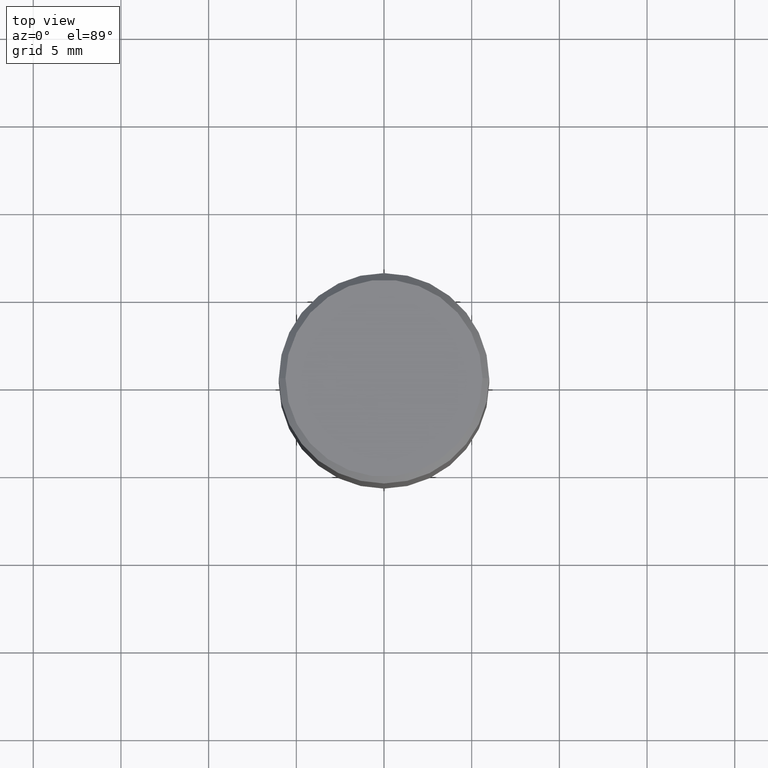
[diagram: clean part render]
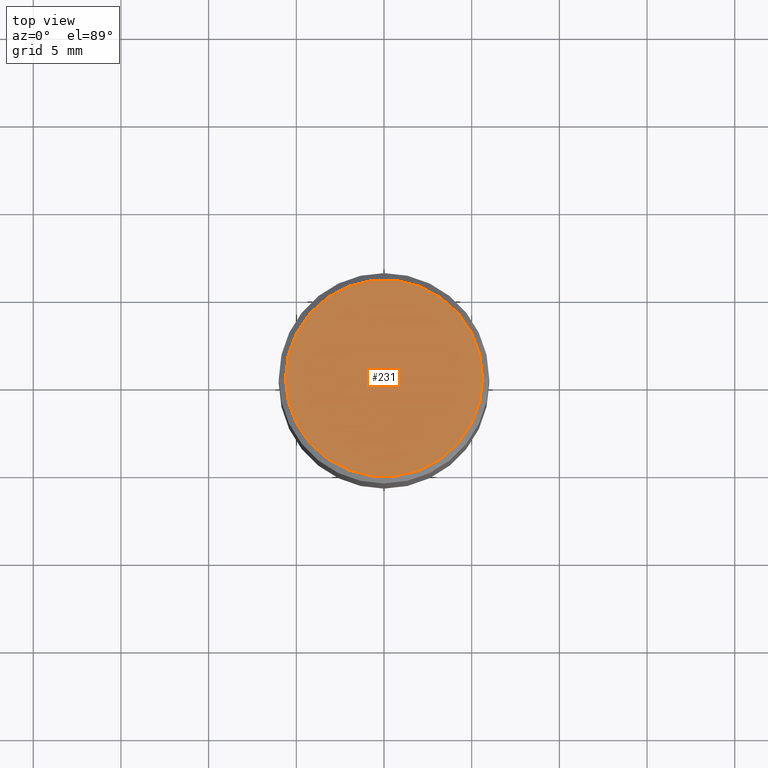
[diagram: same view with one face highlighted and labeled with its STEP entity id]
A machine part, top view. The second image highlights one B-rep face of the part: STEP entity #231.
In plain terms, the highlighted planar face has unit normal (0, -0, -1).
Its self-contained STEP definition (entity closure, byte-faithful):
#5 = CARTESIAN_POINT ( 'NONE',  ( -1.149724336312568549E-45, 1.641501643732376111E-31, 4.701447564592355584E-17 ) ) ;
#13 = DIRECTION ( 'NONE',  ( 1.000000000000000000, -6.982962677686267499E-15, 4.877828720335458505E-29 ) ) ;
#128 = CIRCLE ( 'NONE', #410, 0.2212000000000000077 ) ;
#130 = VERTEX_POINT ( 'NONE', #436 ) ;
#154 = DIRECTION ( 'NONE',  ( -2.445468806185136597E-29, 3.491481338843145583E-15, 1.000000000000000000 ) ) ;
#157 = DIRECTION ( 'NONE',  ( 2.438088387897960049E-29, -3.491481338843145188E-15, -1.000000000000000000 ) ) ;
#171 = CARTESIAN_POINT ( 'NONE',  ( -1.149724336312568549E-45, 1.641501643732376111E-31, 4.701447564592355584E-17 ) ) ;
#177 = EDGE_LOOP ( 'NONE', ( #406, #283 ) ) ;
#198 = DIRECTION ( 'NONE',  ( -1.000000000000000000, 6.982962677686265922E-15, -4.876176775795935793E-29 ) ) ;
#211 = AXIS2_PLACEMENT_3D ( 'NONE', #442, #157, #198 ) ;
#231 = ADVANCED_FACE ( 'NONE', ( #341 ), #336, .F. ) ;
#252 = VERTEX_POINT ( 'NONE', #394 ) ;
#259 = AXIS2_PLACEMENT_3D ( 'NONE', #5, #154, #13 ) ;
#283 = ORIENTED_EDGE ( 'NONE', *, *, #362, .T. ) ;
#307 = CIRCLE ( 'NONE', #259, 0.2212000000000000077 ) ;
#314 = DIRECTION ( 'NONE',  ( -2.445468806185136597E-29, 3.491481338843145583E-15, 1.000000000000000000 ) ) ;
#330 = DIRECTION ( 'NONE',  ( 1.000000000000000000, -6.982962677686267499E-15, 4.877828720335458505E-29 ) ) ;
#336 = PLANE ( 'NONE',  #211 ) ;
#341 = FACE_OUTER_BOUND ( 'NONE', #177, .T. ) ;
#362 = EDGE_CURVE ( 'NONE', #252, #130, #128, .T. ) ;
#370 = EDGE_CURVE ( 'NONE', #130, #252, #307, .T. ) ;
#394 = CARTESIAN_POINT ( 'NONE',  ( 0.2212000000000000077, -1.595182002131672613E-15, 4.701447564593453210E-17 ) ) ;
#406 = ORIENTED_EDGE ( 'NONE', *, *, #370, .T. ) ;
#410 = AXIS2_PLACEMENT_3D ( 'NONE', #171, #314, #330 ) ;
#436 = CARTESIAN_POINT ( 'NONE',  ( -0.2212000000000000077, 1.570817454345525709E-15, 4.701447564591265970E-17 ) ) ;
#442 = CARTESIAN_POINT ( 'NONE',  ( 1.544631344304202170E-15, 0.2212000000000000077, -7.488084343291421542E-16 ) ) ;